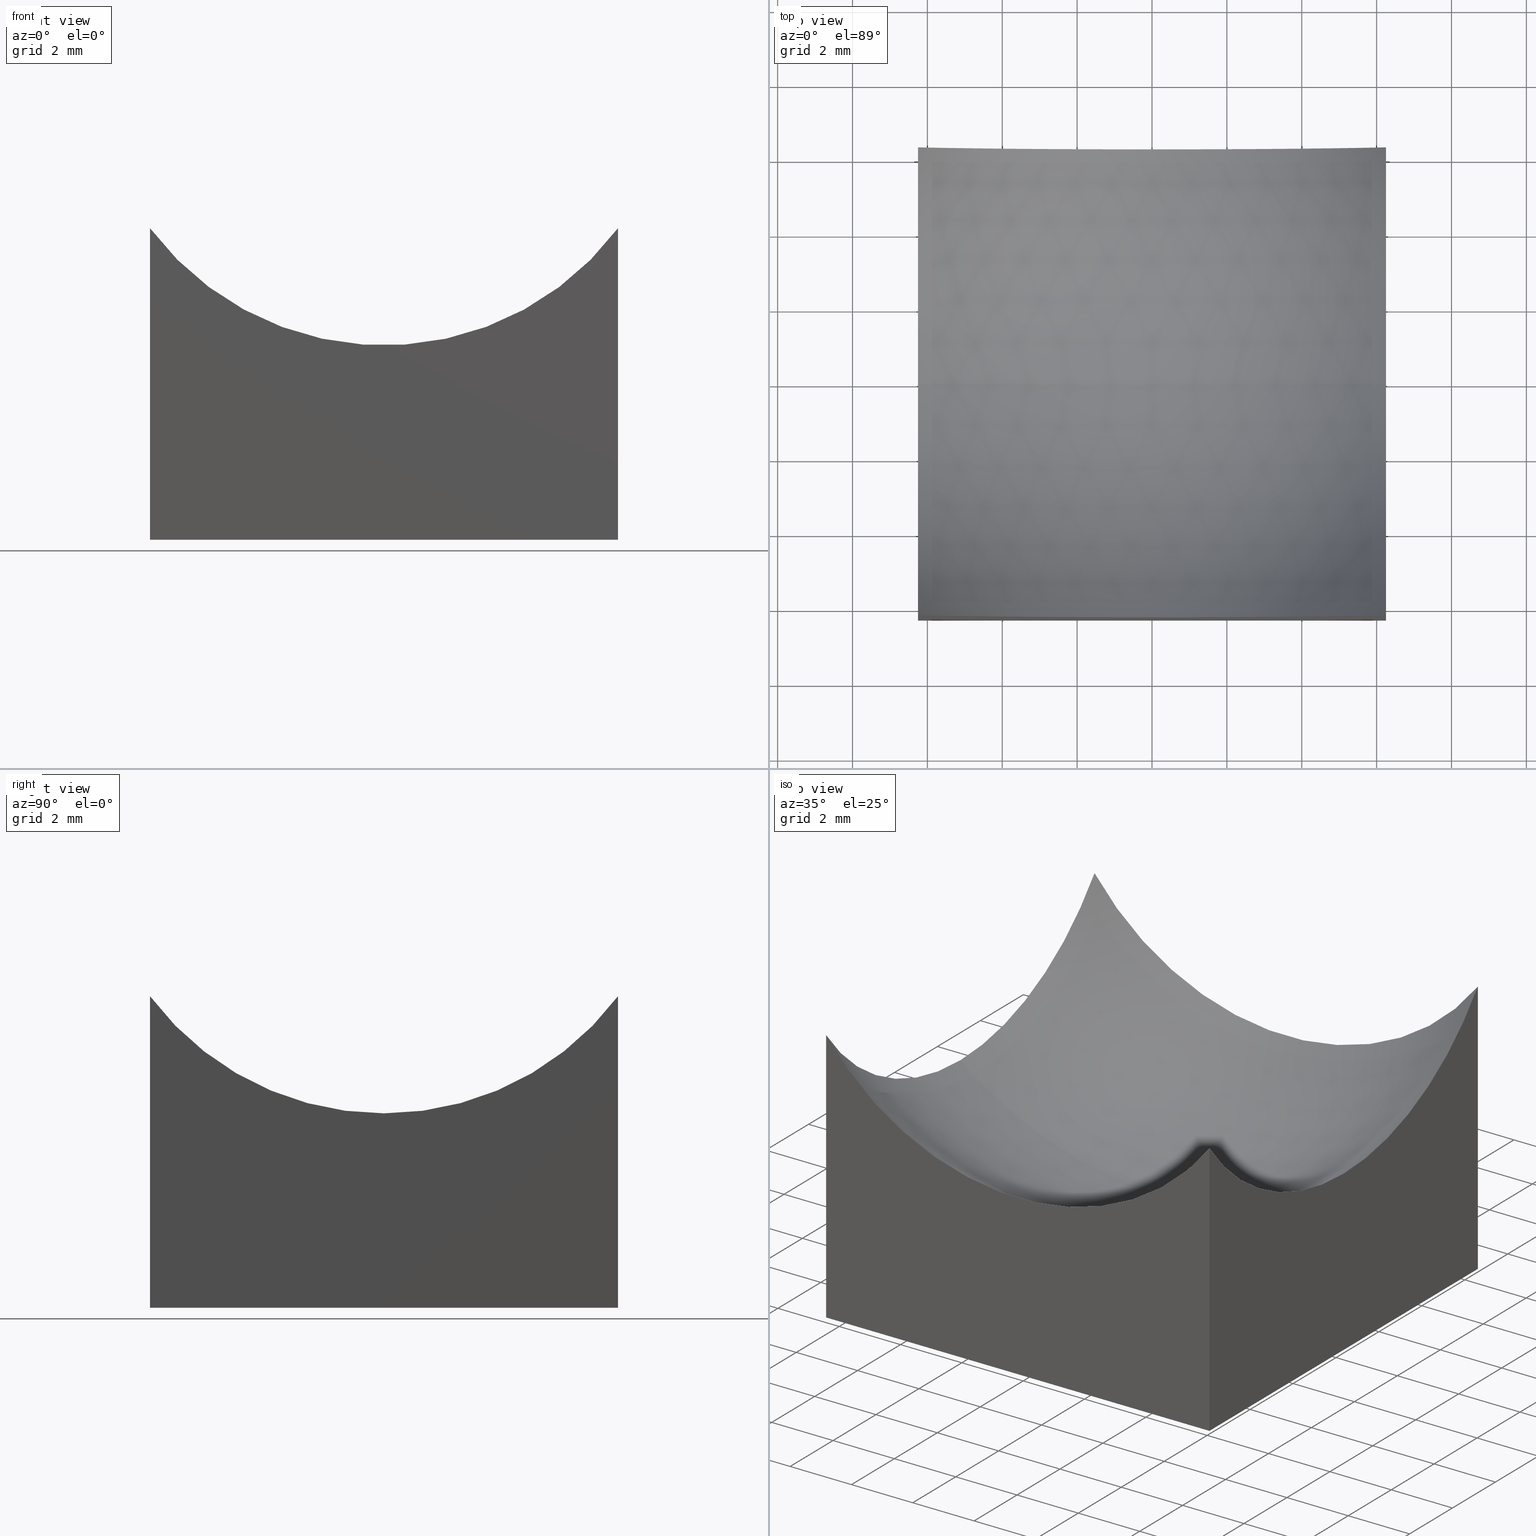
[diagram: canonical four-view strip — front | top / right | iso, engineering-drawing reading convention]
A machine part, canonical four-view strip (front | top / right | iso — engineering-drawing reading convention). The complete STEP part file that produces these views, byte-faithful:
ISO-10303-21;
HEADER;
FILE_DESCRIPTION (( 'STEP AP214' ),
    '1' );
FILE_NAME ('270010.STEP',
    '2020-06-01T07:44:06',
    ( '' ),
    ( '' ),
    'SwSTEP 2.0',
    'SolidWorks 2019',
    '' );
FILE_SCHEMA (( 'AUTOMOTIVE_DESIGN' ));
ENDSEC;

DATA;
#1 = ADVANCED_FACE ( 'NONE', ( #107 ), #11, .F. ) ;
#2 = ORIENTED_EDGE ( 'NONE', *, *, #134, .T. ) ;
#3 = CIRCLE ( 'NONE', #105, 7.806247497997999218 ) ;
#4 =( NAMED_UNIT ( * ) SI_UNIT ( $, .STERADIAN. ) SOLID_ANGLE_UNIT ( ) );
#5 = VERTEX_POINT ( 'NONE', #69 ) ;
#6 = DIRECTION ( 'NONE',  ( 1.000000000000000000, 0.0000000000000000000, -0.0000000000000000000 ) ) ;
#7 = AXIS2_PLACEMENT_3D ( 'NONE', #249, #117, #197 ) ;
#8 = ORIENTED_EDGE ( 'NONE', *, *, #14, .T. ) ;
#9 = MECHANICAL_DESIGN_GEOMETRIC_PRESENTATION_REPRESENTATION (  '', ( #76 ), #234 ) ;
#10 = CARTESIAN_POINT ( 'NONE',  ( 1.734723475976807094E-15, 0.0000000000000000000, 13.00000000000000178 ) ) ;
#11 = PLANE ( 'NONE',  #232 ) ;
#12 =( NAMED_UNIT ( * ) PLANE_ANGLE_UNIT ( ) SI_UNIT ( $, .RADIAN. ) );
#13 = ORIENTED_EDGE ( 'NONE', *, *, #63, .F. ) ;
#14 = EDGE_CURVE ( 'NONE', #88, #109, #224, .T. ) ;
#15 = DIRECTION ( 'NONE',  ( -0.0000000000000000000, 0.0000000000000000000, -1.000000000000000000 ) ) ;
#16 = LINE ( 'NONE', #56, #122 ) ;
#17 = DIRECTION ( 'NONE',  ( 0.0000000000000000000, 1.000000000000000000, 0.0000000000000000000 ) ) ;
#18 = DIRECTION ( 'NONE',  ( 0.0000000000000000000, 1.000000000000000000, 0.0000000000000000000 ) ) ;
#19 = DIRECTION ( 'NONE',  ( 1.000000000000000000, 0.0000000000000000000, 0.0000000000000000000 ) ) ;
#20 = PRODUCT_DEFINITION_SHAPE ( 'NONE', 'NONE',  #186 ) ;
#21 = CARTESIAN_POINT ( 'NONE',  ( -6.250000000000000000, -6.250000000000000888, 10.00000000000000000 ) ) ;
#22 = EDGE_CURVE ( 'NONE', #5, #165, #144, .T. ) ;
#23 = VECTOR ( 'NONE', #41, 1000.000000000000000 ) ;
#24 = ORIENTED_EDGE ( 'NONE', *, *, #68, .F. ) ;
#25 =( LENGTH_UNIT ( ) NAMED_UNIT ( * ) SI_UNIT ( .MILLI., .METRE. ) );
#26 = AXIS2_PLACEMENT_3D ( 'NONE', #174, #212, #15 ) ;
#27 = PRESENTATION_STYLE_ASSIGNMENT (( #46 ) ) ;
#28 = UNCERTAINTY_MEASURE_WITH_UNIT (LENGTH_MEASURE( 1.000000000000000082E-05 ), #43, 'distance_accuracy_value', 'NONE');
#29 = CARTESIAN_POINT ( 'NONE',  ( 6.250000000000000000, 0.0000000000000000000, 13.00000000000000178 ) ) ;
#30 = EDGE_LOOP ( 'NONE', ( #246, #169, #206, #182 ) ) ;
#31 = CARTESIAN_POINT ( 'NONE',  ( -6.250000000000000000, 6.250000000000000888, 10.00000000000000000 ) ) ;
#32 = CIRCLE ( 'NONE', #120, 7.806247497997999218 ) ;
#33 = ORIENTED_EDGE ( 'NONE', *, *, #208, .F. ) ;
#34 = VERTEX_POINT ( 'NONE', #177 ) ;
#35 = CARTESIAN_POINT ( 'NONE',  ( -6.250000000000000000, 6.250000000000000888, 8.322928266532574781 ) ) ;
#36 = VERTEX_POINT ( 'NONE', #233 ) ;
#37 = CARTESIAN_POINT ( 'NONE',  ( 6.250000000000000000, 0.0000000000000000000, 5.193752502001999893 ) ) ;
#38 = DIRECTION ( 'NONE',  ( 0.0000000000000000000, -1.000000000000000000, 0.0000000000000000000 ) ) ;
#39 = CARTESIAN_POINT ( 'NONE',  ( 6.250000000000000000, 6.250000000000000888, 0.0000000000000000000 ) ) ;
#40 = DIRECTION ( 'NONE',  ( 1.000000000000000000, 0.0000000000000000000, 0.0000000000000000000 ) ) ;
#41 = DIRECTION ( 'NONE',  ( -0.0000000000000000000, -0.0000000000000000000, -1.000000000000000000 ) ) ;
#42 = ADVANCED_FACE ( 'NONE', ( #135 ), #59, .F. ) ;
#43 =( LENGTH_UNIT ( ) NAMED_UNIT ( * ) SI_UNIT ( .MILLI., .METRE. ) );
#44 = AXIS2_PLACEMENT_3D ( 'NONE', #148, #194, #162 ) ;
#45 = PRODUCT ( '270010', '270010', '', ( #80 ) ) ;
#46 = SURFACE_STYLE_USAGE ( .BOTH. , #239 ) ;
#47 =( NAMED_UNIT ( * ) PLANE_ANGLE_UNIT ( ) SI_UNIT ( $, .RADIAN. ) );
#48 =( GEOMETRIC_REPRESENTATION_CONTEXT ( 3 ) GLOBAL_UNCERTAINTY_ASSIGNED_CONTEXT ( ( #28 ) ) GLOBAL_UNIT_ASSIGNED_CONTEXT ( ( #43, #79, #178 ) ) REPRESENTATION_CONTEXT ( 'NONE', 'WORKASPACE' ) );
#49 = VERTEX_POINT ( 'NONE', #210 ) ;
#50 = SURFACE_SIDE_STYLE ('',( #112 ) ) ;
#51 = ORIENTED_EDGE ( 'NONE', *, *, #68, .T. ) ;
#52 = DIRECTION ( 'NONE',  ( -0.0000000000000000000, 1.000000000000000000, 0.0000000000000000000 ) ) ;
#53 = PRESENTATION_LAYER_ASSIGNMENT (  '', '', ( #200 ) ) ;
#54 = EDGE_LOOP ( 'NONE', ( #113, #2, #51, #72, #123 ) ) ;
#55 = ORIENTED_EDGE ( 'NONE', *, *, #217, .T. ) ;
#56 = CARTESIAN_POINT ( 'NONE',  ( -6.250000000000000000, 6.250000000000000888, 0.0000000000000000000 ) ) ;
#57 = VECTOR ( 'NONE', #38, 1000.000000000000000 ) ;
#58 = EDGE_CURVE ( 'NONE', #5, #184, #16, .T. ) ;
#59 = SPHERICAL_SURFACE ( 'NONE', #240, 10.00000000000000178 ) ;
#60 = ADVANCED_FACE ( 'NONE', ( #153 ), #151, .F. ) ;
#61 = DIRECTION ( 'NONE',  ( 1.000000000000000000, 0.0000000000000000000, -0.0000000000000000000 ) ) ;
#62 = FACE_OUTER_BOUND ( 'NONE', #101, .T. ) ;
#63 = EDGE_CURVE ( 'NONE', #184, #109, #213, .T. ) ;
#64 = MECHANICAL_DESIGN_GEOMETRIC_PRESENTATION_REPRESENTATION (  '', ( #200 ), #125 ) ;
#65 = CARTESIAN_POINT ( 'NONE',  ( 0.0000000000000000000, 0.0000000000000000000, 0.0000000000000000000 ) ) ;
#66 = CIRCLE ( 'NONE', #147, 7.806247497997999218 ) ;
#67 = FILL_AREA_STYLE ('',( #161 ) ) ;
#68 = EDGE_CURVE ( 'NONE', #204, #36, #81, .T. ) ;
#69 = CARTESIAN_POINT ( 'NONE',  ( -6.250000000000000000, 6.250000000000000888, 0.0000000000000000000 ) ) ;
#70 = CARTESIAN_POINT ( 'NONE',  ( 1.734723475976807094E-15, 6.250000000000000888, 13.00000000000000178 ) ) ;
#71 = ORIENTED_EDGE ( 'NONE', *, *, #83, .T. ) ;
#72 = ORIENTED_EDGE ( 'NONE', *, *, #196, .T. ) ;
#73 = CARTESIAN_POINT ( 'NONE',  ( 6.250000000000000000, -6.250000000000000888, 8.322928266532569452 ) ) ;
#74 = DIRECTION ( 'NONE',  ( 0.0000000000000000000, 0.0000000000000000000, 1.000000000000000000 ) ) ;
#75 = COLOUR_RGB ( '',1.000000000000000000, 1.000000000000000000, 1.000000000000000000 ) ;
#76 = STYLED_ITEM ( 'NONE', ( #27 ), #90 ) ;
#77 = CARTESIAN_POINT ( 'NONE',  ( 6.250000000000000000, -6.250000000000000888, 0.0000000000000000000 ) ) ;
#78 = CARTESIAN_POINT ( 'NONE',  ( 1.734723475976807094E-15, -6.250000000000000888, 13.00000000000000178 ) ) ;
#79 =( NAMED_UNIT ( * ) PLANE_ANGLE_UNIT ( ) SI_UNIT ( $, .RADIAN. ) );
#80 = PRODUCT_CONTEXT ( 'NONE', #173, 'mechanical' ) ;
#81 = CIRCLE ( 'NONE', #188, 7.806247497998001883 ) ;
#82 = ORIENTED_EDGE ( 'NONE', *, *, #14, .F. ) ;
#83 = EDGE_CURVE ( 'NONE', #88, #34, #32, .T. ) ;
#84 = CARTESIAN_POINT ( 'NONE',  ( 1.734723475976807094E-15, 0.0000000000000000000, 13.00000000000000178 ) ) ;
#85 = DIRECTION ( 'NONE',  ( 0.0000000000000000000, 0.0000000000000000000, -1.000000000000000000 ) ) ;
#86 = VECTOR ( 'NONE', #252, 1000.000000000000000 ) ;
#87 = VECTOR ( 'NONE', #89, 1000.000000000000000 ) ;
#88 = VERTEX_POINT ( 'NONE', #73 ) ;
#89 = DIRECTION ( 'NONE',  ( -0.0000000000000000000, -0.0000000000000000000, -1.000000000000000000 ) ) ;
#90 = ADVANCED_BREP_SHAPE_REPRESENTATION ( '270010', ( #201, #94 ), #48 ) ;
#91 = CARTESIAN_POINT ( 'NONE',  ( -6.250000000000000000, -6.250000000000000888, 10.00000000000000000 ) ) ;
#92 = ORIENTED_EDGE ( 'NONE', *, *, #211, .F. ) ;
#93 =( NAMED_UNIT ( * ) SI_UNIT ( $, .STERADIAN. ) SOLID_ANGLE_UNIT ( ) );
#94 = AXIS2_PLACEMENT_3D ( 'NONE', #65, #238, #181 ) ;
#95 = CARTESIAN_POINT ( 'NONE',  ( 0.0000000000000000000, 0.0000000000000000000, 0.0000000000000000000 ) ) ;
#96 = ADVANCED_FACE ( 'NONE', ( #175 ), #137, .T. ) ;
#97 = DIRECTION ( 'NONE',  ( -1.000000000000000000, 0.0000000000000000000, -0.0000000000000000000 ) ) ;
#98 = CARTESIAN_POINT ( 'NONE',  ( -6.250000000000000000, 0.0000000000000000000, 13.00000000000000178 ) ) ;
#99 = DIRECTION ( 'NONE',  ( -0.0000000000000000000, 1.000000000000000000, 0.0000000000000000000 ) ) ;
#100 = AXIS2_PLACEMENT_3D ( 'NONE', #29, #6, #242 ) ;
#101 = EDGE_LOOP ( 'NONE', ( #126, #55, #230, #92 ) ) ;
#102 = EDGE_CURVE ( 'NONE', #207, #198, #3, .T. ) ;
#103 = APPLICATION_PROTOCOL_DEFINITION ( 'draft international standard', 'automotive_design', 1998, #160 ) ;
#104 = EDGE_CURVE ( 'NONE', #49, #207, #131, .T. ) ;
#105 = AXIS2_PLACEMENT_3D ( 'NONE', #98, #119, #195 ) ;
#106 = CARTESIAN_POINT ( 'NONE',  ( 6.250000000000000000, 6.250000000000000888, 0.0000000000000000000 ) ) ;
#107 = FACE_OUTER_BOUND ( 'NONE', #158, .T. ) ;
#108 = ADVANCED_FACE ( 'NONE', ( #62 ), #250, .T. ) ;
#109 = VERTEX_POINT ( 'NONE', #77 ) ;
#110 = DIRECTION ( 'NONE',  ( 1.000000000000000000, 0.0000000000000000000, 0.0000000000000000000 ) ) ;
#111 = ORIENTED_EDGE ( 'NONE', *, *, #185, .F. ) ;
#112 = SURFACE_STYLE_FILL_AREA ( #166 ) ;
#113 = ORIENTED_EDGE ( 'NONE', *, *, #104, .F. ) ;
#114 = CARTESIAN_POINT ( 'NONE',  ( -6.250000000000000000, -6.250000000000000888, 0.0000000000000000000 ) ) ;
#115 = PRODUCT_RELATED_PRODUCT_CATEGORY ( 'part', '', ( #45 ) ) ;
#116 = PRODUCT_DEFINITION_FORMATION_WITH_SPECIFIED_SOURCE ( '�κ�', '', #45, .NOT_KNOWN. ) ;
#117 = DIRECTION ( 'NONE',  ( 1.000000000000000000, 0.0000000000000000000, -0.0000000000000000000 ) ) ;
#118 = CARTESIAN_POINT ( 'NONE',  ( 1.734723475976807094E-15, 0.0000000000000000000, 13.00000000000000178 ) ) ;
#119 = DIRECTION ( 'NONE',  ( 1.000000000000000000, 0.0000000000000000000, -0.0000000000000000000 ) ) ;
#120 = AXIS2_PLACEMENT_3D ( 'NONE', #78, #18, #74 ) ;
#121 = ORIENTED_EDGE ( 'NONE', *, *, #134, .F. ) ;
#122 = VECTOR ( 'NONE', #40, 1000.000000000000000 ) ;
#123 = ORIENTED_EDGE ( 'NONE', *, *, #102, .F. ) ;
#124 = APPLICATION_PROTOCOL_DEFINITION ( 'draft international standard', 'automotive_design', 1998, #173 ) ;
#125 =( GEOMETRIC_REPRESENTATION_CONTEXT ( 3 ) GLOBAL_UNCERTAINTY_ASSIGNED_CONTEXT ( ( #202 ) ) GLOBAL_UNIT_ASSIGNED_CONTEXT ( ( #223, #12, #93 ) ) REPRESENTATION_CONTEXT ( 'NONE', 'WORKASPACE' ) );
#126 = ORIENTED_EDGE ( 'NONE', *, *, #196, .F. ) ;
#127 = DIRECTION ( 'NONE',  ( 0.0000000000000000000, -1.000000000000000000, 0.0000000000000000000 ) ) ;
#128 = ADVANCED_FACE ( 'NONE', ( #248 ), #231, .T. ) ;
#129 = ORIENTED_EDGE ( 'NONE', *, *, #104, .T. ) ;
#130 = DIRECTION ( 'NONE',  ( 1.000000000000000000, 0.0000000000000000000, 0.0000000000000000000 ) ) ;
#131 = CIRCLE ( 'NONE', #139, 10.00000000000000178 ) ;
#132 = ORIENTED_EDGE ( 'NONE', *, *, #219, .T. ) ;
#133 = DIRECTION ( 'NONE',  ( 0.0000000000000000000, -0.0000000000000000000, 1.000000000000000000 ) ) ;
#134 = EDGE_CURVE ( 'NONE', #49, #204, #170, .T. ) ;
#135 = FACE_OUTER_BOUND ( 'NONE', #227, .T. ) ;
#136 = DIRECTION ( 'NONE',  ( 1.224646799147353207E-16, 1.000000000000000000, 9.649496739354411937E-33 ) ) ;
#137 = PLANE ( 'NONE',  #215 ) ;
#138 = DIRECTION ( 'NONE',  ( 0.0000000000000000000, -0.0000000000000000000, 1.000000000000000000 ) ) ;
#139 = AXIS2_PLACEMENT_3D ( 'NONE', #154, #136, #236 ) ;
#140 = LINE ( 'NONE', #21, #251 ) ;
#141 = PRODUCT_DEFINITION_CONTEXT ( 'detailed design', #160, 'design' ) ;
#142 = PRESENTATION_STYLE_ASSIGNMENT (( #229 ) ) ;
#143 = ORIENTED_EDGE ( 'NONE', *, *, #179, .T. ) ;
#144 = LINE ( 'NONE', #244, #86 ) ;
#145 = FACE_OUTER_BOUND ( 'NONE', #54, .T. ) ;
#146 = ORIENTED_EDGE ( 'NONE', *, *, #211, .T. ) ;
#147 = AXIS2_PLACEMENT_3D ( 'NONE', #70, #168, #205 ) ;
#148 = CARTESIAN_POINT ( 'NONE',  ( -6.250000000000000000, 0.0000000000000000000, 13.00000000000000178 ) ) ;
#149 = ORIENTED_EDGE ( 'NONE', *, *, #208, .T. ) ;
#150 = CARTESIAN_POINT ( 'NONE',  ( -6.250000000000000000, 6.250000000000000888, 10.00000000000000000 ) ) ;
#151 = PLANE ( 'NONE',  #7 ) ;
#152 = AXIS2_PLACEMENT_3D ( 'NONE', #150, #17, #138 ) ;
#153 = FACE_OUTER_BOUND ( 'NONE', #243, .T. ) ;
#154 = CARTESIAN_POINT ( 'NONE',  ( 1.734723475976807094E-15, 0.0000000000000000000, 13.00000000000000178 ) ) ;
#155 = LINE ( 'NONE', #237, #23 ) ;
#156 = ADVANCED_FACE ( 'NONE', ( #145 ), #245, .F. ) ;
#157 = CIRCLE ( 'NONE', #100, 7.806247497998001883 ) ;
#158 = EDGE_LOOP ( 'NONE', ( #82, #71, #132, #143 ) ) ;
#159 = AXIS2_PLACEMENT_3D ( 'NONE', #84, #52, #130 ) ;
#160 = APPLICATION_CONTEXT ( 'automotive_design' ) ;
#161 = FILL_AREA_STYLE_COLOUR ( '', #189 ) ;
#162 = DIRECTION ( 'NONE',  ( 0.0000000000000000000, 0.0000000000000000000, -1.000000000000000000 ) ) ;
#163 = CLOSED_SHELL ( 'NONE', ( #42, #108, #60, #1, #128, #96, #156 ) ) ;
#164 = FILL_AREA_STYLE_COLOUR ( '', #75 ) ;
#165 = VERTEX_POINT ( 'NONE', #114 ) ;
#166 = FILL_AREA_STYLE ('',( #164 ) ) ;
#167 = CARTESIAN_POINT ( 'NONE',  ( 6.250000000000000000, -6.250000000000000888, 10.00000000000000000 ) ) ;
#168 = DIRECTION ( 'NONE',  ( 0.0000000000000000000, 1.000000000000000000, 0.0000000000000000000 ) ) ;
#169 = ORIENTED_EDGE ( 'NONE', *, *, #63, .T. ) ;
#170 = CIRCLE ( 'NONE', #176, 10.00000000000000178 ) ;
#171 = LINE ( 'NONE', #191, #221 ) ;
#172 = DIRECTION ( 'NONE',  ( 0.0000000000000000000, 0.0000000000000000000, -1.000000000000000000 ) ) ;
#173 = APPLICATION_CONTEXT ( 'automotive_design' ) ;
#174 = CARTESIAN_POINT ( 'NONE',  ( 6.250000000000000000, 6.250000000000000888, 10.00000000000000000 ) ) ;
#175 = FACE_OUTER_BOUND ( 'NONE', #30, .T. ) ;
#176 = AXIS2_PLACEMENT_3D ( 'NONE', #10, #127, #85 ) ;
#177 = CARTESIAN_POINT ( 'NONE',  ( -6.250000000000000000, -6.250000000000000888, 8.322928266532574781 ) ) ;
#178 =( NAMED_UNIT ( * ) SI_UNIT ( $, .STERADIAN. ) SOLID_ANGLE_UNIT ( ) );
#179 = EDGE_CURVE ( 'NONE', #165, #109, #171, .T. ) ;
#180 = ORIENTED_EDGE ( 'NONE', *, *, #83, .F. ) ;
#181 = DIRECTION ( 'NONE',  ( 1.000000000000000000, 0.0000000000000000000, 0.0000000000000000000 ) ) ;
#182 = ORIENTED_EDGE ( 'NONE', *, *, #22, .F. ) ;
#183 = SHAPE_DEFINITION_REPRESENTATION ( #20, #90 ) ;
#184 = VERTEX_POINT ( 'NONE', #106 ) ;
#185 = EDGE_CURVE ( 'NONE', #34, #207, #228, .T. ) ;
#186 = PRODUCT_DEFINITION ( 'δ֪', '', #116, #141 ) ;
#187 = ORIENTED_EDGE ( 'NONE', *, *, #219, .F. ) ;
#188 = AXIS2_PLACEMENT_3D ( 'NONE', #235, #61, #214 ) ;
#189 = COLOUR_RGB ( '',1.000000000000000000, 1.000000000000000000, 1.000000000000000000 ) ;
#190 = ORIENTED_EDGE ( 'NONE', *, *, #102, .T. ) ;
#191 = CARTESIAN_POINT ( 'NONE',  ( -6.250000000000000000, -6.250000000000000888, 0.0000000000000000000 ) ) ;
#192 = ORIENTED_EDGE ( 'NONE', *, *, #185, .T. ) ;
#193 = DIRECTION ( 'NONE',  ( 0.0000000000000000000, 1.000000000000000000, 0.0000000000000000000 ) ) ;
#194 = DIRECTION ( 'NONE',  ( 1.000000000000000000, 0.0000000000000000000, -0.0000000000000000000 ) ) ;
#195 = DIRECTION ( 'NONE',  ( 0.0000000000000000000, 0.0000000000000000000, -1.000000000000000000 ) ) ;
#196 = EDGE_CURVE ( 'NONE', #36, #198, #66, .T. ) ;
#197 = DIRECTION ( 'NONE',  ( -0.0000000000000000000, 0.0000000000000000000, -1.000000000000000000 ) ) ;
#198 = VERTEX_POINT ( 'NONE', #35 ) ;
#199 = UNCERTAINTY_MEASURE_WITH_UNIT (LENGTH_MEASURE( 1.000000000000000082E-05 ), #25, 'distance_accuracy_value', 'NONE');
#200 = STYLED_ITEM ( 'NONE', ( #142 ), #201 ) ;
#201 = MANIFOLD_SOLID_BREP ( '�г�-��ת2', #163 ) ;
#202 = UNCERTAINTY_MEASURE_WITH_UNIT (LENGTH_MEASURE( 1.000000000000000082E-05 ), #223, 'distance_accuracy_value', 'NONE');
#203 = DIRECTION ( 'NONE',  ( -0.0000000000000000000, -0.0000000000000000000, -1.000000000000000000 ) ) ;
#204 = VERTEX_POINT ( 'NONE', #37 ) ;
#205 = DIRECTION ( 'NONE',  ( 0.0000000000000000000, 0.0000000000000000000, 1.000000000000000000 ) ) ;
#206 = ORIENTED_EDGE ( 'NONE', *, *, #179, .F. ) ;
#207 = VERTEX_POINT ( 'NONE', #247 ) ;
#208 = EDGE_CURVE ( 'NONE', #88, #204, #157, .T. ) ;
#209 = VECTOR ( 'NONE', #203, 1000.000000000000000 ) ;
#210 = CARTESIAN_POINT ( 'NONE',  ( 3.134988079991859781E-15, 0.0000000000000000000, 2.999999999999999112 ) ) ;
#211 = EDGE_CURVE ( 'NONE', #198, #5, #225, .T. ) ;
#212 = DIRECTION ( 'NONE',  ( 1.000000000000000000, 0.0000000000000000000, -0.0000000000000000000 ) ) ;
#213 = LINE ( 'NONE', #39, #57 ) ;
#214 = DIRECTION ( 'NONE',  ( 0.0000000000000000000, 0.0000000000000000000, -1.000000000000000000 ) ) ;
#215 = AXIS2_PLACEMENT_3D ( 'NONE', #95, #172, #97 ) ;
#216 = DIRECTION ( 'NONE',  ( -0.0000000000000000000, -0.0000000000000000000, -1.000000000000000000 ) ) ;
#217 = EDGE_CURVE ( 'NONE', #36, #184, #155, .T. ) ;
#218 = EDGE_LOOP ( 'NONE', ( #33, #8, #13, #226, #24 ) ) ;
#219 = EDGE_CURVE ( 'NONE', #34, #165, #140, .T. ) ;
#220 = SURFACE_STYLE_FILL_AREA ( #67 ) ;
#221 = VECTOR ( 'NONE', #110, 1000.000000000000000 ) ;
#222 = PRESENTATION_LAYER_ASSIGNMENT (  '', '', ( #76 ) ) ;
#223 =( LENGTH_UNIT ( ) NAMED_UNIT ( * ) SI_UNIT ( .MILLI., .METRE. ) );
#224 = LINE ( 'NONE', #167, #209 ) ;
#225 = LINE ( 'NONE', #31, #87 ) ;
#226 = ORIENTED_EDGE ( 'NONE', *, *, #217, .F. ) ;
#227 = EDGE_LOOP ( 'NONE', ( #121, #129, #111, #180, #149 ) ) ;
#228 = CIRCLE ( 'NONE', #44, 7.806247497997999218 ) ;
#229 = SURFACE_STYLE_USAGE ( .BOTH. , #50 ) ;
#230 = ORIENTED_EDGE ( 'NONE', *, *, #58, .F. ) ;
#231 = PLANE ( 'NONE',  #26 ) ;
#232 = AXIS2_PLACEMENT_3D ( 'NONE', #91, #193, #133 ) ;
#233 = CARTESIAN_POINT ( 'NONE',  ( 6.250000000000000000, 6.250000000000000888, 8.322928266532569452 ) ) ;
#234 =( GEOMETRIC_REPRESENTATION_CONTEXT ( 3 ) GLOBAL_UNCERTAINTY_ASSIGNED_CONTEXT ( ( #199 ) ) GLOBAL_UNIT_ASSIGNED_CONTEXT ( ( #25, #47, #4 ) ) REPRESENTATION_CONTEXT ( 'NONE', 'WORKASPACE' ) );
#235 = CARTESIAN_POINT ( 'NONE',  ( 6.250000000000000000, 0.0000000000000000000, 13.00000000000000178 ) ) ;
#236 = DIRECTION ( 'NONE',  ( -1.000000000000000000, 1.224646799147353207E-16, 0.0000000000000000000 ) ) ;
#237 = CARTESIAN_POINT ( 'NONE',  ( 6.250000000000000000, 6.250000000000000888, 10.00000000000000000 ) ) ;
#238 = DIRECTION ( 'NONE',  ( 0.0000000000000000000, 0.0000000000000000000, 1.000000000000000000 ) ) ;
#239 = SURFACE_SIDE_STYLE ('',( #220 ) ) ;
#240 = AXIS2_PLACEMENT_3D ( 'NONE', #118, #99, #19 ) ;
#241 = ORIENTED_EDGE ( 'NONE', *, *, #22, .T. ) ;
#242 = DIRECTION ( 'NONE',  ( 0.0000000000000000000, 0.0000000000000000000, -1.000000000000000000 ) ) ;
#243 = EDGE_LOOP ( 'NONE', ( #187, #192, #190, #146, #241 ) ) ;
#244 = CARTESIAN_POINT ( 'NONE',  ( -6.250000000000000000, 6.250000000000000888, 0.0000000000000000000 ) ) ;
#245 = SPHERICAL_SURFACE ( 'NONE', #159, 10.00000000000000178 ) ;
#246 = ORIENTED_EDGE ( 'NONE', *, *, #58, .T. ) ;
#247 = CARTESIAN_POINT ( 'NONE',  ( -6.250000000000000000, 7.654042494670960565E-16, 5.193752502002001670 ) ) ;
#248 = FACE_OUTER_BOUND ( 'NONE', #218, .T. ) ;
#249 = CARTESIAN_POINT ( 'NONE',  ( -6.250000000000000000, 6.250000000000000888, 10.00000000000000000 ) ) ;
#250 = PLANE ( 'NONE',  #152 ) ;
#251 = VECTOR ( 'NONE', #216, 1000.000000000000000 ) ;
#252 = DIRECTION ( 'NONE',  ( 0.0000000000000000000, -1.000000000000000000, 0.0000000000000000000 ) ) ;
ENDSEC;
END-ISO-10303-21;
